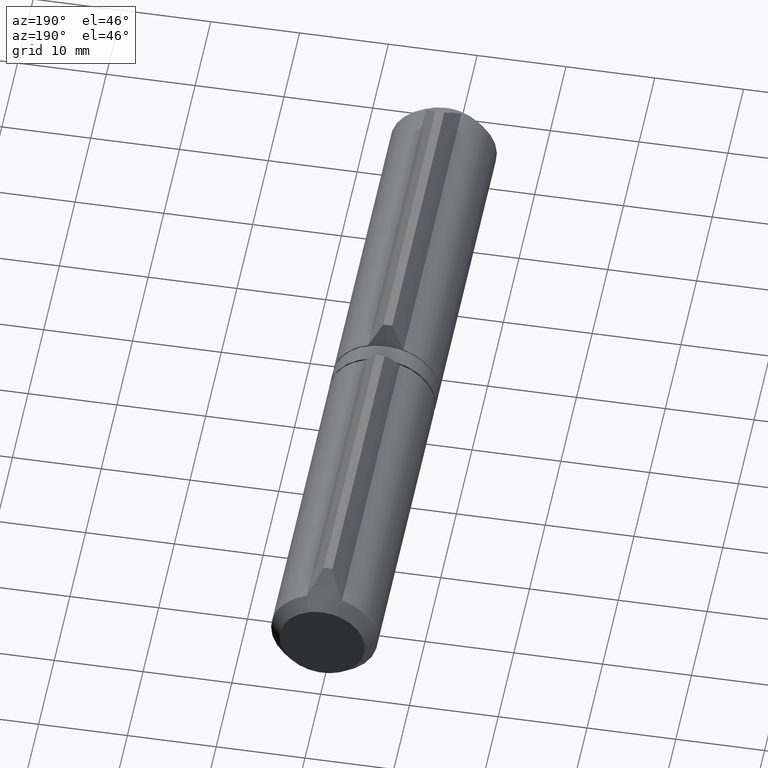
[diagram: clean part render]
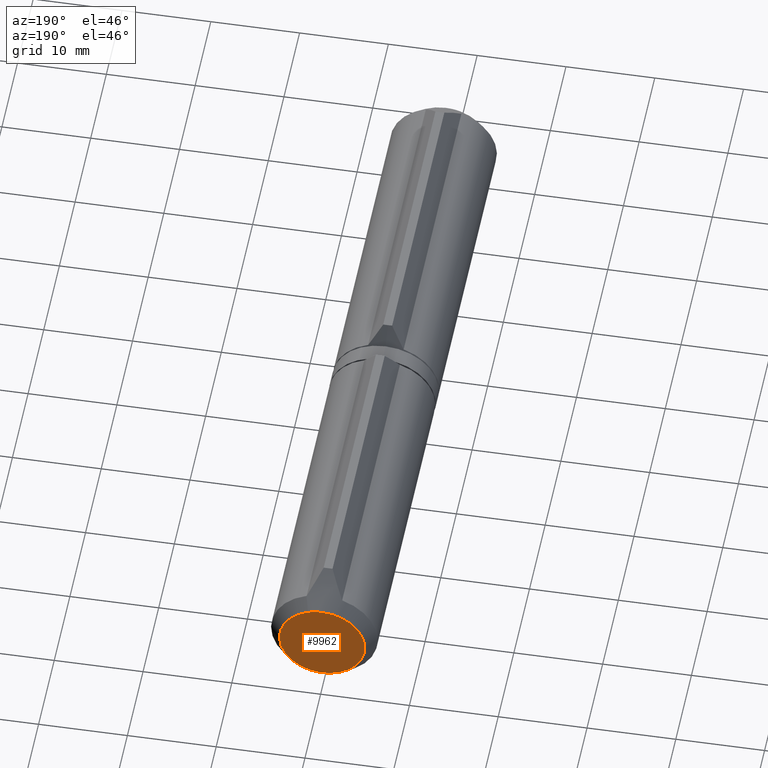
[diagram: same view with one face highlighted and labeled with its STEP entity id]
A machine part, auxiliary view. The second image highlights one B-rep face of the part: STEP entity #9962.
In plain terms, the highlighted planar face has unit normal (-0, -1, 0).
Its self-contained STEP definition (entity closure, byte-faithful):
#201 = CARTESIAN_POINT ( 'NONE',  ( 0.000000000000000000, 0.000000000000000000, 0.000000000000000000 ) ) ;
#321 = PLANE ( 'NONE',  #10141 ) ;
#1174 = CARTESIAN_POINT ( 'NONE',  ( 0.000000000000000000, -8.711390972962024627E-18, -1.576536431810755588E-35 ) ) ;
#1300 = AXIS2_PLACEMENT_3D ( 'NONE', #1174, #9247, #17437 ) ;
#1358 = EDGE_LOOP ( 'NONE', ( #10030 ) ) ;
#2078 = FACE_OUTER_BOUND ( 'NONE', #1358, .T. ) ;
#6505 = CARTESIAN_POINT ( 'NONE',  ( 0.000000000000000000, 0.000000000000000000, -4.813611100419767475 ) ) ;
#7181 = DIRECTION ( 'NONE',  ( 0.000000000000000000, -0.000000000000000000, 1.000000000000000000 ) ) ;
#9247 = DIRECTION ( 'NONE',  ( -0.000000000000000000, -1.000000000000000000, -1.809741333736402930E-18 ) ) ;
#9348 = CIRCLE ( 'NONE', #1300, 4.813611100419767475 ) ;
#9962 = ADVANCED_FACE ( 'NONE', ( #2078 ), #321, .F. ) ;
#10030 = ORIENTED_EDGE ( 'NONE', *, *, #14285, .T. ) ;
#10141 = AXIS2_PLACEMENT_3D ( 'NONE', #201, #15428, #7181 ) ;
#10807 = VERTEX_POINT ( 'NONE', #6505 ) ;
#14285 = EDGE_CURVE ( 'NONE', #10807, #10807, #9348, .T. ) ;
#15428 = DIRECTION ( 'NONE',  ( 0.000000000000000000, 1.000000000000000000, 0.000000000000000000 ) ) ;
#17437 = DIRECTION ( 'NONE',  ( 0.000000000000000000, 1.809741333736402930E-18, -1.000000000000000000 ) ) ;